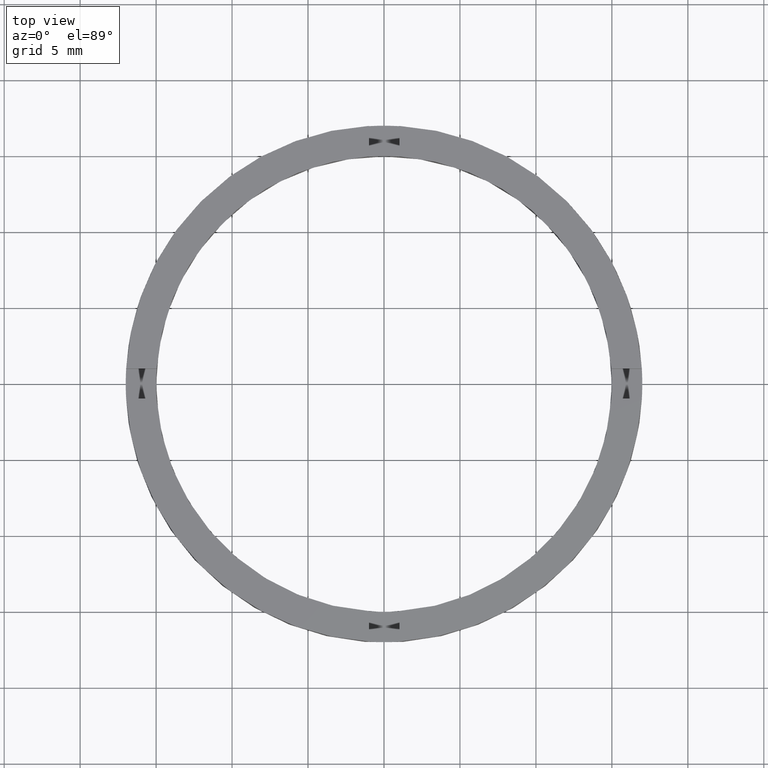
[diagram: clean part render]
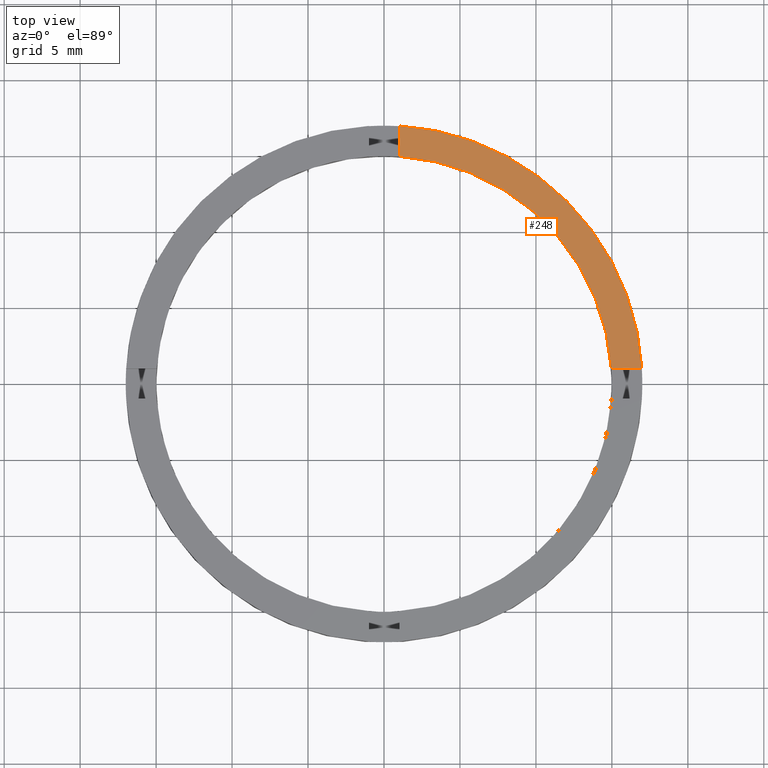
[diagram: same view with one face highlighted and labeled with its STEP entity id]
A machine part, top view. The second image highlights one B-rep face of the part: STEP entity #248.
In plain terms, the highlighted planar face has unit normal (0, 0, 1).
Its self-contained STEP definition (entity closure, byte-faithful):
#2 = PLANE ( 'NONE',  #516 ) ;
#6 = DIRECTION ( 'NONE',  ( 1.000000000000000000, 0.000000000000000000, 0.000000000000000000 ) ) ;
#54 = ORIENTED_EDGE ( 'NONE', *, *, #497, .F. ) ;
#75 = CARTESIAN_POINT ( 'NONE',  ( 16.97056274847714974, 0.9999999999998411271, 2.500000000000000000 ) ) ;
#94 = CARTESIAN_POINT ( 'NONE',  ( 0.000000000000000000, 0.000000000000000000, 2.500000000000000000 ) ) ;
#98 = VERTEX_POINT ( 'NONE', #75 ) ;
#103 = EDGE_LOOP ( 'NONE', ( #54, #303, #650, #676 ) ) ;
#116 = CARTESIAN_POINT ( 'NONE',  ( 0.9999999999999749090, 7.000000000000000888, 2.500000000000000000 ) ) ;
#196 = DIRECTION ( 'NONE',  ( 0.000000000000000000, 1.000000000000000000, 0.000000000000000000 ) ) ;
#228 = DIRECTION ( 'NONE',  ( 0.000000000000000000, 0.000000000000000000, 1.000000000000000000 ) ) ;
#237 = DIRECTION ( 'NONE',  ( 1.000000000000000000, 0.000000000000000000, -0.000000000000000000 ) ) ;
#248 = ADVANCED_FACE ( 'NONE', ( #450 ), #2, .T. ) ;
#270 = DIRECTION ( 'NONE',  ( 1.000000000000000000, 0.000000000000000000, 0.000000000000000000 ) ) ;
#271 = VERTEX_POINT ( 'NONE', #729 ) ;
#291 = VERTEX_POINT ( 'NONE', #422 ) ;
#303 = ORIENTED_EDGE ( 'NONE', *, *, #325, .F. ) ;
#312 = CARTESIAN_POINT ( 'NONE',  ( 0.000000000000000000, 0.000000000000000000, 2.500000000000000000 ) ) ;
#325 = EDGE_CURVE ( 'NONE', #271, #291, #473, .T. ) ;
#336 = CARTESIAN_POINT ( 'NONE',  ( 0.9999999999999749090, 16.97056274847714263, 2.500000000000000000 ) ) ;
#361 = EDGE_CURVE ( 'NONE', #98, #369, #732, .T. ) ;
#369 = VERTEX_POINT ( 'NONE', #336 ) ;
#380 = AXIS2_PLACEMENT_3D ( 'NONE', #387, #228, #270 ) ;
#387 = CARTESIAN_POINT ( 'NONE',  ( 0.000000000000000000, 0.000000000000000000, 2.500000000000000000 ) ) ;
#406 = LINE ( 'NONE', #481, #693 ) ;
#422 = CARTESIAN_POINT ( 'NONE',  ( 0.9999999999999749090, 14.96662954709576709, 2.500000000000000000 ) ) ;
#448 = LINE ( 'NONE', #116, #713 ) ;
#450 = FACE_OUTER_BOUND ( 'NONE', #103, .T. ) ;
#459 = DIRECTION ( 'NONE',  ( 0.000000000000000000, 0.000000000000000000, 1.000000000000000000 ) ) ;
#473 = CIRCLE ( 'NONE', #605, 15.00000000000000000 ) ;
#481 = CARTESIAN_POINT ( 'NONE',  ( 6.999999999999995559, 0.9999999999998406830, 2.500000000000000000 ) ) ;
#497 = EDGE_CURVE ( 'NONE', #291, #369, #448, .T. ) ;
#516 = AXIS2_PLACEMENT_3D ( 'NONE', #94, #557, #237 ) ;
#557 = DIRECTION ( 'NONE',  ( 0.000000000000000000, 0.000000000000000000, 1.000000000000000000 ) ) ;
#598 = DIRECTION ( 'NONE',  ( -1.000000000000000000, -4.336808689942018352E-17, -0.000000000000000000 ) ) ;
#605 = AXIS2_PLACEMENT_3D ( 'NONE', #312, #459, #6 ) ;
#650 = ORIENTED_EDGE ( 'NONE', *, *, #776, .F. ) ;
#676 = ORIENTED_EDGE ( 'NONE', *, *, #361, .T. ) ;
#693 = VECTOR ( 'NONE', #598, 1000.000000000000000 ) ;
#713 = VECTOR ( 'NONE', #196, 1000.000000000000000 ) ;
#729 = CARTESIAN_POINT ( 'NONE',  ( 14.96662954709577775, 0.9999999999998411271, 2.500000000000000000 ) ) ;
#732 = CIRCLE ( 'NONE', #380, 17.00000000000000000 ) ;
#776 = EDGE_CURVE ( 'NONE', #98, #271, #406, .T. ) ;